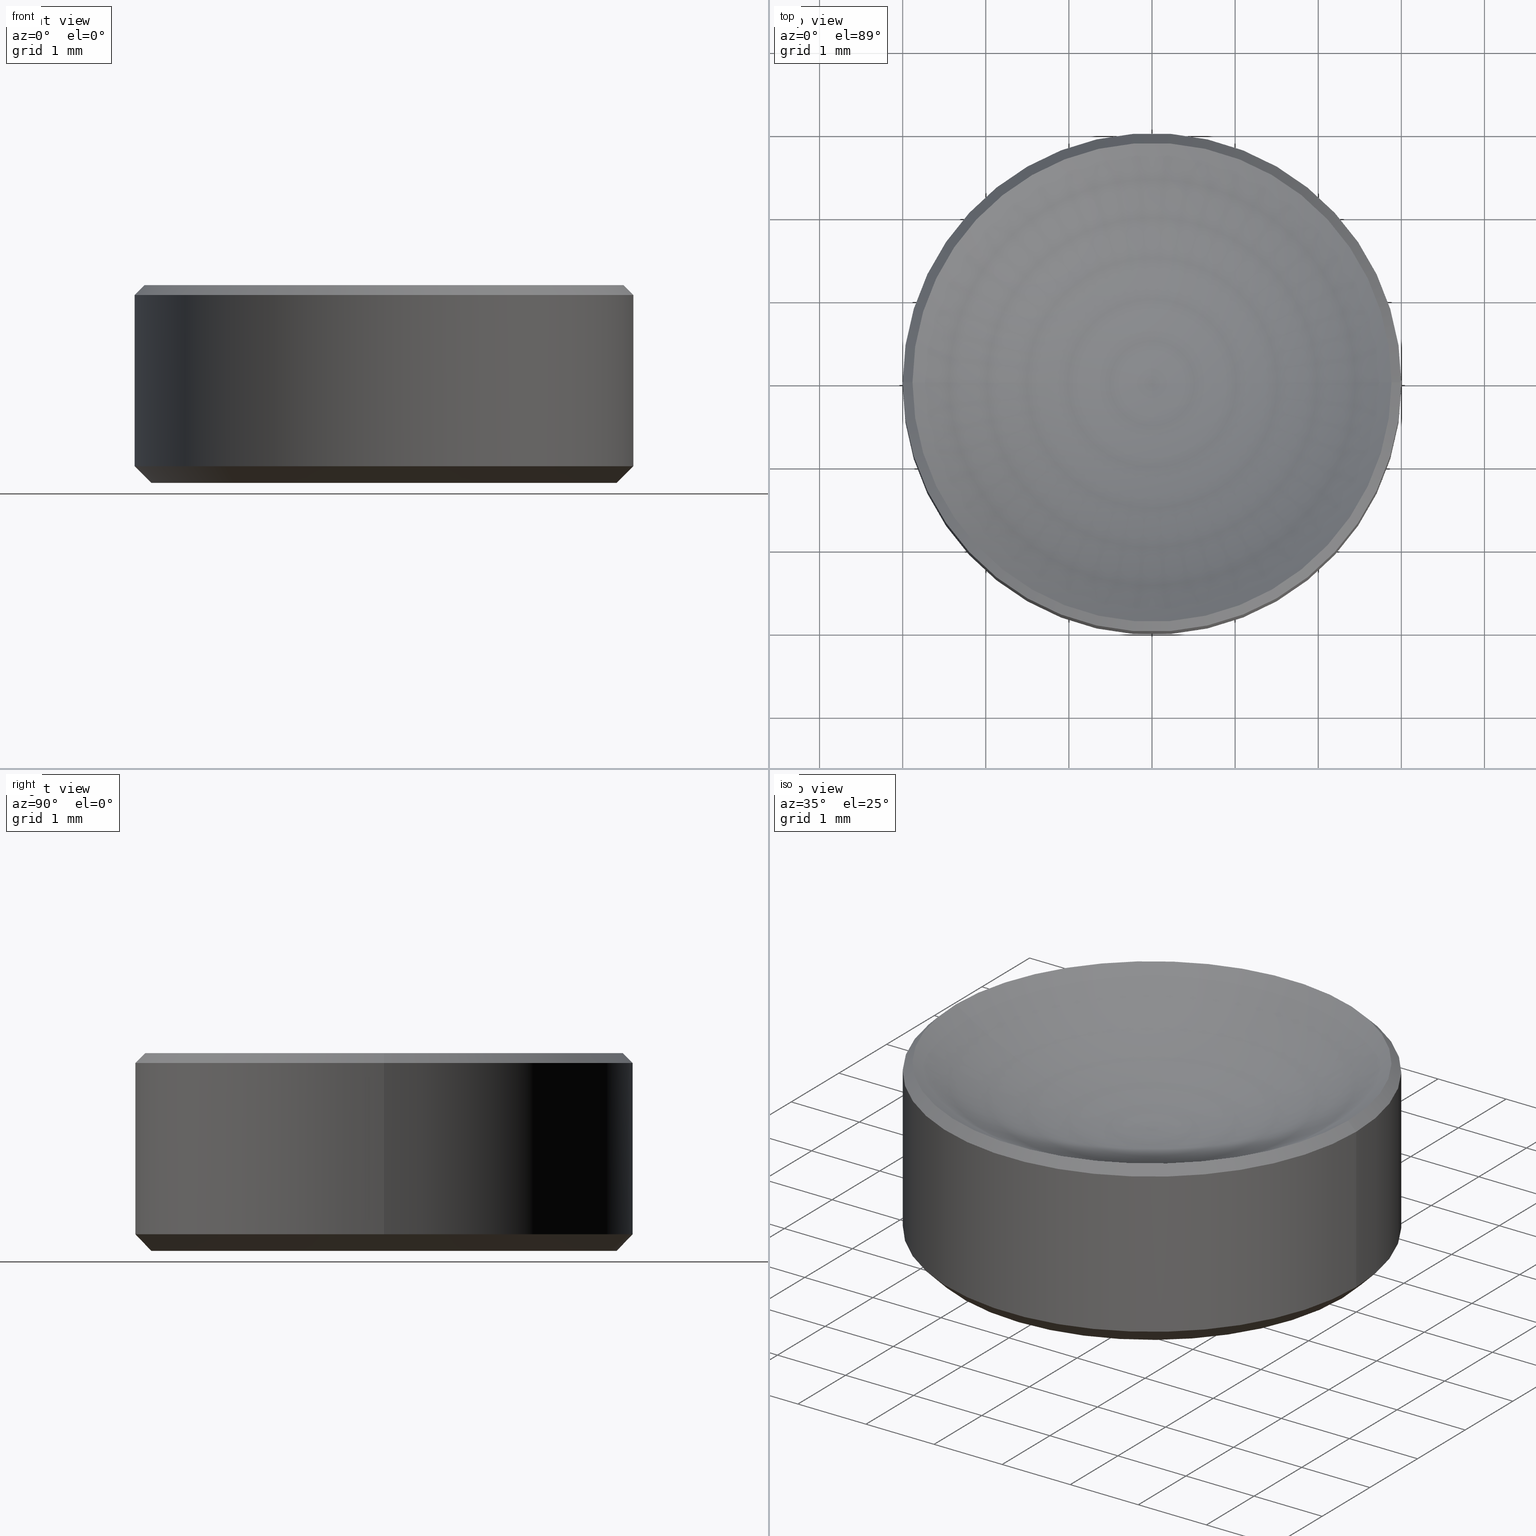
[diagram: canonical four-view strip — front | top / right | iso, engineering-drawing reading convention]
A machine part, canonical four-view strip (front | top / right | iso — engineering-drawing reading convention). The complete STEP part file that produces these views, byte-faithful:
ISO-10303-21;
HEADER;
FILE_DESCRIPTION (( 'STEP AP214' ),
    '1' );
FILE_NAME ('GL13-006A-010.STEP',
    '2022-10-25T12:36:45',
    ( '' ),
    ( '' ),
    'SwSTEP 2.0',
    'SolidWorks 2022',
    '' );
FILE_SCHEMA (( 'AUTOMOTIVE_DESIGN' ));
ENDSEC;

DATA;
#1 = CIRCLE ( 'NONE', #142, 3.000000000000000000 ) ;
#2 = ORIENTED_EDGE ( 'NONE', *, *, #121, .F. ) ;
#3 = EDGE_LOOP ( 'NONE', ( #32, #45, #189, #2 ) ) ;
#4 = AXIS2_PLACEMENT_3D ( 'NONE', #193, #9, #162 ) ;
#5 = DIRECTION ( 'NONE',  ( -1.000000000000000000, 1.224646799147353207E-16, 0.000000000000000000 ) ) ;
#6 = EDGE_LOOP ( 'NONE', ( #127, #15 ) ) ;
#7 = DIRECTION ( 'NONE',  ( 1.000000000000000000, 0.000000000000000000, 0.000000000000000000 ) ) ;
#8 = ORIENTED_EDGE ( 'NONE', *, *, #196, .T. ) ;
#9 = DIRECTION ( 'NONE',  ( -0.000000000000000000, -0.000000000000000000, 1.000000000000000000 ) ) ;
#10 = AXIS2_PLACEMENT_3D ( 'NONE', #213, #210, #72 ) ;
#11 = ORIENTED_EDGE ( 'NONE', *, *, #208, .F. ) ;
#12 = CARTESIAN_POINT ( 'NONE',  ( 0.000000000000000000, 0.000000000000000000, 2.378202045785372309 ) ) ;
#13 = FILL_AREA_STYLE ('',( #200 ) ) ;
#14 = DIRECTION ( 'NONE',  ( 1.000000000000000000, 0.000000000000000000, 0.000000000000000000 ) ) ;
#15 = ORIENTED_EDGE ( 'NONE', *, *, #247, .T. ) ;
#16 = ADVANCED_FACE ( 'NONE', ( #27 ), #179, .T. ) ;
#17 = ORIENTED_EDGE ( 'NONE', *, *, #52, .F. ) ;
#18 = CARTESIAN_POINT ( 'NONE',  ( 3.000000000000000000, 0.000000000000000000, 0.2000000000000016209 ) ) ;
#19 = CARTESIAN_POINT ( 'NONE',  ( 0.000000000000000000, 0.000000000000000000, 6.669999938107513238 ) ) ;
#20 = LINE ( 'NONE', #246, #216 ) ;
#21 = AXIS2_PLACEMENT_3D ( 'NONE', #107, #91, #14 ) ;
#22 =( GEOMETRIC_REPRESENTATION_CONTEXT ( 3 ) GLOBAL_UNCERTAINTY_ASSIGNED_CONTEXT ( ( #232 ) ) GLOBAL_UNIT_ASSIGNED_CONTEXT ( ( #249, #173, #170 ) ) REPRESENTATION_CONTEXT ( 'NONE', 'WORKASPACE' ) );
#23 = CIRCLE ( 'NONE', #160, 5.169999999999999929 ) ;
#24 = ORIENTED_EDGE ( 'NONE', *, *, #108, .T. ) ;
#25 = ADVANCED_FACE ( 'NONE', ( #212 ), #90, .F. ) ;
#26 = SURFACE_STYLE_FILL_AREA ( #235 ) ;
#27 = FACE_OUTER_BOUND ( 'NONE', #64, .T. ) ;
#28 = DIRECTION ( 'NONE',  ( -1.000000000000000000, 0.000000000000000000, 0.000000000000000000 ) ) ;
#29 = CARTESIAN_POINT ( 'NONE',  ( -3.000000000000000000, 3.673940397442059868E-16, 0.2000000000000016209 ) ) ;
#30 = CARTESIAN_POINT ( 'NONE',  ( -3.000000000000000000, 3.673940397442059868E-16, 2.260000000000000675 ) ) ;
#31 = SHAPE_DEFINITION_REPRESENTATION ( #242, #123 ) ;
#32 = ORIENTED_EDGE ( 'NONE', *, *, #108, .F. ) ;
#33 = VERTEX_POINT ( 'NONE', #30 ) ;
#34 = AXIS2_PLACEMENT_3D ( 'NONE', #190, #41, #57 ) ;
#35 = CARTESIAN_POINT ( 'NONE',  ( -2.799999999999997158, 3.551475717527322846E-16, 1.836970198721029934E-16 ) ) ;
#36 = CARTESIAN_POINT ( 'NONE',  ( 3.000000000000000000, 0.000000000000000000, 0.2000000000000016209 ) ) ;
#37 = ORIENTED_EDGE ( 'NONE', *, *, #121, .T. ) ;
#38 = APPLICATION_CONTEXT ( 'automotive_design' ) ;
#39 = DIRECTION ( 'NONE',  ( -0.000000000000000000, -0.000000000000000000, 1.000000000000000000 ) ) ;
#40 = AXIS2_PLACEMENT_3D ( 'NONE', #12, #134, #165 ) ;
#41 = DIRECTION ( 'NONE',  ( 0.000000000000000000, 0.000000000000000000, -1.000000000000000000 ) ) ;
#42 = AXIS2_PLACEMENT_3D ( 'NONE', #188, #133, #28 ) ;
#43 = ADVANCED_FACE ( 'NONE', ( #62 ), #199, .F. ) ;
#44 = EDGE_CURVE ( 'NONE', #185, #105, #176, .T. ) ;
#45 = ORIENTED_EDGE ( 'NONE', *, *, #59, .T. ) ;
#46 = DIRECTION ( 'NONE',  ( 1.000000000000000000, 0.000000000000000000, 0.000000000000000000 ) ) ;
#47 = CARTESIAN_POINT ( 'NONE',  ( 0.000000000000000000, 0.000000000000000000, 0.2000000000000016209 ) ) ;
#48 = CIRCLE ( 'NONE', #104, 2.799999999999997158 ) ;
#49 = EDGE_LOOP ( 'NONE', ( #112, #223, #206, #184 ) ) ;
#50 = DIRECTION ( 'NONE',  ( 0.000000000000000000, 0.000000000000000000, -1.000000000000000000 ) ) ;
#51 = DIRECTION ( 'NONE',  ( 0.000000000000000000, 0.000000000000000000, -1.000000000000000000 ) ) ;
#52 = EDGE_CURVE ( 'NONE', #105, #227, #56, .T. ) ;
#53 = AXIS2_PLACEMENT_3D ( 'NONE', #82, #167, #66 ) ;
#54 = ORIENTED_EDGE ( 'NONE', *, *, #144, .T. ) ;
#55 = CARTESIAN_POINT ( 'NONE',  ( 0.000000000000000000, 0.000000000000000000, 2.378202045785374974 ) ) ;
#56 = CIRCLE ( 'NONE', #248, 3.000000000000000000 ) ;
#57 = DIRECTION ( 'NONE',  ( -1.000000000000000000, 0.000000000000000000, 0.000000000000000000 ) ) ;
#58 = DIRECTION ( 'NONE',  ( -0.000000000000000000, -0.000000000000000000, 1.000000000000000000 ) ) ;
#59 = EDGE_CURVE ( 'NONE', #124, #61, #243, .T. ) ;
#60 = PRODUCT_RELATED_PRODUCT_CATEGORY ( 'part', '', ( #73 ) ) ;
#61 = VERTEX_POINT ( 'NONE', #172 ) ;
#62 = FACE_OUTER_BOUND ( 'NONE', #166, .T. ) ;
#63 = STYLED_ITEM ( 'NONE', ( #259 ), #211 ) ;
#64 = EDGE_LOOP ( 'NONE', ( #222, #209, #37, #85 ) ) ;
#65 = DIRECTION ( 'NONE',  ( -0.000000000000000000, -0.000000000000000000, 1.000000000000000000 ) ) ;
#66 = DIRECTION ( 'NONE',  ( 1.000000000000000000, 0.000000000000000000, 0.000000000000000000 ) ) ;
#67 = PRODUCT_DEFINITION ( 'δ֪', '', #70, #147 ) ;
#68 = SURFACE_STYLE_USAGE ( .BOTH. , #174 ) ;
#69 = AXIS2_PLACEMENT_3D ( 'NONE', #47, #65, #46 ) ;
#70 = PRODUCT_DEFINITION_FORMATION_WITH_SPECIFIED_SOURCE ( '�κ�', '', #73, .NOT_KNOWN. ) ;
#71 = CYLINDRICAL_SURFACE ( 'NONE', #21, 3.000000000000000000 ) ;
#72 = DIRECTION ( 'NONE',  ( 1.000000000000000000, 0.000000000000000000, 0.000000000000000000 ) ) ;
#73 = PRODUCT ( 'GL13-006A-010', 'GL13-006A-010', '', ( #215 ) ) ;
#74 = CARTESIAN_POINT ( 'NONE',  ( 2.881797954214630142, 0.000000000000000000, 2.378202045785374974 ) ) ;
#75 = DIRECTION ( 'NONE',  ( 1.000000000000000000, 0.000000000000000000, 0.000000000000000000 ) ) ;
#76 = CIRCLE ( 'NONE', #245, 2.881797954214628810 ) ;
#77 = PRESENTATION_LAYER_ASSIGNMENT (  '', '', ( #97 ) ) ;
#78 = EDGE_CURVE ( 'NONE', #98, #124, #151, .T. ) ;
#79 = AXIS2_PLACEMENT_3D ( 'NONE', #19, #96, #101 ) ;
#80 = AXIS2_PLACEMENT_3D ( 'NONE', #55, #241, #258 ) ;
#81 = FACE_OUTER_BOUND ( 'NONE', #3, .T. ) ;
#82 = CARTESIAN_POINT ( 'NONE',  ( 0.000000000000000000, 0.000000000000000000, 1.500000000000000000 ) ) ;
#83 = EDGE_CURVE ( 'NONE', #33, #61, #106, .T. ) ;
#84 = CARTESIAN_POINT ( 'NONE',  ( 0.000000000000000000, 0.000000000000000000, 0.000000000000000000 ) ) ;
#85 = ORIENTED_EDGE ( 'NONE', *, *, #252, .F. ) ;
#86 = VERTEX_POINT ( 'NONE', #229 ) ;
#87 = CARTESIAN_POINT ( 'NONE',  ( 0.000000000000000000, 0.000000000000000000, 0.2000000000000016209 ) ) ;
#88 = FACE_OUTER_BOUND ( 'NONE', #250, .T. ) ;
#89 = FACE_OUTER_BOUND ( 'NONE', #49, .T. ) ;
#90 = TOROIDAL_SURFACE ( 'NONE', #4, -0.0007999801944051383035, 5.169999999999999929 ) ;
#91 = DIRECTION ( 'NONE',  ( -0.000000000000000000, -0.000000000000000000, 1.000000000000000000 ) ) ;
#92 = ADVANCED_FACE ( 'NONE', ( #88 ), #71, .T. ) ;
#93 = FILL_AREA_STYLE_COLOUR ( '', #194 ) ;
#94 = SURFACE_STYLE_FILL_AREA ( #13 ) ;
#95 = DIRECTION ( 'NONE',  ( 0.7071067811865450192, 8.659560562354900811E-17, -0.7071067811865500152 ) ) ;
#96 = DIRECTION ( 'NONE',  ( -0.000000000000000000, -0.000000000000000000, 1.000000000000000000 ) ) ;
#97 = STYLED_ITEM ( 'NONE', ( #264 ), #123 ) ;
#98 = VERTEX_POINT ( 'NONE', #219 ) ;
#99 = LINE ( 'NONE', #178, #143 ) ;
#100 = CARTESIAN_POINT ( 'NONE',  ( 0.000000000000000000, 0.000000000000000000, 2.378202045785374974 ) ) ;
#101 = DIRECTION ( 'NONE',  ( 1.000000000000000000, 0.000000000000000000, 0.000000000000000000 ) ) ;
#102 =( LENGTH_UNIT ( ) NAMED_UNIT ( * ) SI_UNIT ( .MILLI., .METRE. ) );
#103 = VECTOR ( 'NONE', #260, 1000.000000000000000 ) ;
#104 = AXIS2_PLACEMENT_3D ( 'NONE', #154, #50, #136 ) ;
#105 = VERTEX_POINT ( 'NONE', #18 ) ;
#106 = CIRCLE ( 'NONE', #217, 3.000000000000000000 ) ;
#107 = CARTESIAN_POINT ( 'NONE',  ( 0.000000000000000000, 0.000000000000000000, 1.500000000000000000 ) ) ;
#108 = EDGE_CURVE ( 'NONE', #124, #98, #76, .T. ) ;
#109 =( GEOMETRIC_REPRESENTATION_CONTEXT ( 3 ) GLOBAL_UNCERTAINTY_ASSIGNED_CONTEXT ( ( #122 ) ) GLOBAL_UNIT_ASSIGNED_CONTEXT ( ( #197, #255, #140 ) ) REPRESENTATION_CONTEXT ( 'NONE', 'WORKASPACE' ) );
#110 = FACE_OUTER_BOUND ( 'NONE', #191, .T. ) ;
#111 = VERTEX_POINT ( 'NONE', #35 ) ;
#112 = ORIENTED_EDGE ( 'NONE', *, *, #145, .F. ) ;
#113 = DIRECTION ( 'NONE',  ( 1.000000000000000000, 0.000000000000000000, 0.000000000000000000 ) ) ;
#114 = PLANE ( 'NONE',  #10 ) ;
#115 = CARTESIAN_POINT ( 'NONE',  ( 0.0007999801944051383035, -9.796931844595300665E-20, 6.669999938107513238 ) ) ;
#116 = AXIS2_PLACEMENT_3D ( 'NONE', #150, #132, #113 ) ;
#117 = AXIS2_PLACEMENT_3D ( 'NONE', #84, #138, #75 ) ;
#118 = DIRECTION ( 'NONE',  ( 0.000000000000000000, 0.000000000000000000, -1.000000000000000000 ) ) ;
#119 = LINE ( 'NONE', #175, #103 ) ;
#120 = CARTESIAN_POINT ( 'NONE',  ( 2.881797954214629254, 3.529184640418335740E-16, 2.378202045785372309 ) ) ;
#121 = EDGE_CURVE ( 'NONE', #98, #33, #119, .T. ) ;
#122 = UNCERTAINTY_MEASURE_WITH_UNIT (LENGTH_MEASURE( 1.000000000000000082E-05 ), #197, 'distance_accuracy_value', 'NONE');
#123 = ADVANCED_BREP_SHAPE_REPRESENTATION ( 'GL13-006A-010', ( #211, #117 ), #183 ) ;
#124 = VERTEX_POINT ( 'NONE', #74 ) ;
#125 = ADVANCED_FACE ( 'NONE', ( #89 ), #239, .T. ) ;
#126 = APPLICATION_PROTOCOL_DEFINITION ( 'draft international standard', 'automotive_design', 1998, #38 ) ;
#127 = ORIENTED_EDGE ( 'NONE', *, *, #181, .T. ) ;
#128 = PRESENTATION_LAYER_ASSIGNMENT (  '', '', ( #63 ) ) ;
#129 = VECTOR ( 'NONE', #130, 1000.000000000000000 ) ;
#130 = DIRECTION ( 'NONE',  ( -0.7071067811865497932, 8.659560562354961208E-17, 0.7071067811865452413 ) ) ;
#131 = CLOSED_SHELL ( 'NONE', ( #214, #224, #92, #43, #25, #230, #163, #125, #16 ) ) ;
#132 = DIRECTION ( 'NONE',  ( 0.000000000000000000, 0.000000000000000000, -1.000000000000000000 ) ) ;
#133 = DIRECTION ( 'NONE',  ( 0.000000000000000000, 0.000000000000000000, -1.000000000000000000 ) ) ;
#134 = DIRECTION ( 'NONE',  ( 0.000000000000000000, 0.000000000000000000, -1.000000000000000000 ) ) ;
#135 = ORIENTED_EDGE ( 'NONE', *, *, #254, .T. ) ;
#136 = DIRECTION ( 'NONE',  ( 1.000000000000000000, 0.000000000000000000, 0.000000000000000000 ) ) ;
#137 = DIRECTION ( 'NONE',  ( -1.000000000000000000, 0.000000000000000000, 0.000000000000000000 ) ) ;
#138 = DIRECTION ( 'NONE',  ( 0.000000000000000000, 0.000000000000000000, 1.000000000000000000 ) ) ;
#139 = VECTOR ( 'NONE', #263, 1000.000000000000000 ) ;
#140 =( NAMED_UNIT ( * ) SI_UNIT ( $, .STERADIAN. ) SOLID_ANGLE_UNIT ( ) );
#141 = ORIENTED_EDGE ( 'NONE', *, *, #83, .T. ) ;
#142 = AXIS2_PLACEMENT_3D ( 'NONE', #87, #192, #231 ) ;
#143 = VECTOR ( 'NONE', #58, 1000.000000000000000 ) ;
#144 = EDGE_CURVE ( 'NONE', #227, #105, #1, .T. ) ;
#145 = EDGE_CURVE ( 'NONE', #111, #227, #257, .T. ) ;
#146 = CARTESIAN_POINT ( 'NONE',  ( 2.799999999999997158, 0.000000000000000000, 1.836970198721029934E-16 ) ) ;
#147 = PRODUCT_DEFINITION_CONTEXT ( 'detailed design', #182, 'design' ) ;
#148 = ORIENTED_EDGE ( 'NONE', *, *, #252, .T. ) ;
#149 = ORIENTED_EDGE ( 'NONE', *, *, #145, .T. ) ;
#150 = CARTESIAN_POINT ( 'NONE',  ( 0.000000000000000000, 0.000000000000000000, 1.836970198721029934E-16 ) ) ;
#151 = CIRCLE ( 'NONE', #80, 2.881797954214628810 ) ;
#152 = DIRECTION ( 'NONE',  ( 1.224646799147353207E-16, 1.000000000000000000, 0.000000000000000000 ) ) ;
#153 = ORIENTED_EDGE ( 'NONE', *, *, #247, .F. ) ;
#154 = CARTESIAN_POINT ( 'NONE',  ( 0.000000000000000000, 0.000000000000000000, 1.836970198721029934E-16 ) ) ;
#155 = CARTESIAN_POINT ( 'NONE',  ( 0.000000000000000000, 0.000000000000000000, 2.260000000000000675 ) ) ;
#156 = DIRECTION ( 'NONE',  ( 1.000000000000000000, 0.000000000000000000, 0.000000000000000000 ) ) ;
#157 = SURFACE_SIDE_STYLE ('',( #94 ) ) ;
#158 = DIRECTION ( 'NONE',  ( -0.000000000000000000, -0.000000000000000000, 1.000000000000000000 ) ) ;
#159 = CARTESIAN_POINT ( 'NONE',  ( 0.000000000000000000, 0.000000000000000000, 0.2000000000000016209 ) ) ;
#160 = AXIS2_PLACEMENT_3D ( 'NONE', #115, #152, #5 ) ;
#161 = AXIS2_PLACEMENT_3D ( 'NONE', #256, #195, #118 ) ;
#162 = DIRECTION ( 'NONE',  ( 1.000000000000000000, 0.000000000000000000, 0.000000000000000000 ) ) ;
#163 = ADVANCED_FACE ( 'NONE', ( #169 ), #114, .F. ) ;
#164 = CONICAL_SURFACE ( 'NONE', #69, 3.000000000000000000, 0.7853981633974514986 ) ;
#165 = DIRECTION ( 'NONE',  ( -1.000000000000000000, 0.000000000000000000, 0.000000000000000000 ) ) ;
#166 = EDGE_LOOP ( 'NONE', ( #11, #8, #251 ) ) ;
#167 = DIRECTION ( 'NONE',  ( -0.000000000000000000, -0.000000000000000000, 1.000000000000000000 ) ) ;
#168 = UNCERTAINTY_MEASURE_WITH_UNIT (LENGTH_MEASURE( 1.000000000000000082E-05 ), #102, 'distance_accuracy_value', 'NONE');
#169 = FACE_OUTER_BOUND ( 'NONE', #6, .T. ) ;
#170 =( NAMED_UNIT ( * ) SI_UNIT ( $, .STERADIAN. ) SOLID_ANGLE_UNIT ( ) );
#171 = CARTESIAN_POINT ( 'NONE',  ( 0.000000000000000000, 0.000000000000000000, 0.2000000000000016209 ) ) ;
#172 = CARTESIAN_POINT ( 'NONE',  ( 3.000000000000000000, 0.000000000000000000, 2.260000000000000675 ) ) ;
#173 =( NAMED_UNIT ( * ) PLANE_ANGLE_UNIT ( ) SI_UNIT ( $, .RADIAN. ) );
#174 = SURFACE_SIDE_STYLE ('',( #26 ) ) ;
#175 = CARTESIAN_POINT ( 'NONE',  ( -2.881797954214629254, 0.000000000000000000, 2.378202045785372309 ) ) ;
#176 = LINE ( 'NONE', #36, #139 ) ;
#177 = EDGE_LOOP ( 'NONE', ( #153, #149, #17, #202 ) ) ;
#178 = CARTESIAN_POINT ( 'NONE',  ( -3.000000000000000000, 3.673940397442059868E-16, 1.500000000000000000 ) ) ;
#179 = CONICAL_SURFACE ( 'NONE', #42, 2.881797954214629254, 0.7853981633974447263 ) ;
#180 = MECHANICAL_DESIGN_GEOMETRIC_PRESENTATION_REPRESENTATION (  '', ( #97 ), #22 ) ;
#181 = EDGE_CURVE ( 'NONE', #185, #111, #48, .T. ) ;
#182 = APPLICATION_CONTEXT ( 'automotive_design' ) ;
#183 =( GEOMETRIC_REPRESENTATION_CONTEXT ( 3 ) GLOBAL_UNCERTAINTY_ASSIGNED_CONTEXT ( ( #168 ) ) GLOBAL_UNIT_ASSIGNED_CONTEXT ( ( #102, #198, #262 ) ) REPRESENTATION_CONTEXT ( 'NONE', 'WORKASPACE' ) );
#184 = ORIENTED_EDGE ( 'NONE', *, *, #144, .F. ) ;
#185 = VERTEX_POINT ( 'NONE', #146 ) ;
#186 = MECHANICAL_DESIGN_GEOMETRIC_PRESENTATION_REPRESENTATION (  '', ( #63 ), #109 ) ;
#187 = CYLINDRICAL_SURFACE ( 'NONE', #53, 3.000000000000000000 ) ;
#188 = CARTESIAN_POINT ( 'NONE',  ( 0.000000000000000000, 0.000000000000000000, 2.378202045785372309 ) ) ;
#189 = ORIENTED_EDGE ( 'NONE', *, *, #83, .F. ) ;
#190 = CARTESIAN_POINT ( 'NONE',  ( 0.000000000000000000, 0.000000000000000000, 2.260000000000000675 ) ) ;
#191 = EDGE_LOOP ( 'NONE', ( #204, #54, #218, #148 ) ) ;
#192 = DIRECTION ( 'NONE',  ( -0.000000000000000000, -0.000000000000000000, 1.000000000000000000 ) ) ;
#193 = CARTESIAN_POINT ( 'NONE',  ( 0.000000000000000000, 0.000000000000000000, 6.669999938107513238 ) ) ;
#194 = COLOUR_RGB ( '',1.000000000000000000, 1.000000000000000000, 1.000000000000000000 ) ;
#195 = DIRECTION ( 'NONE',  ( 0.000000000000000000, -1.000000000000000000, 0.000000000000000000 ) ) ;
#196 = EDGE_CURVE ( 'NONE', #86, #98, #23, .T. ) ;
#197 =( LENGTH_UNIT ( ) NAMED_UNIT ( * ) SI_UNIT ( .MILLI., .METRE. ) );
#198 =( NAMED_UNIT ( * ) PLANE_ANGLE_UNIT ( ) SI_UNIT ( $, .RADIAN. ) );
#199 = TOROIDAL_SURFACE ( 'NONE', #79, -0.0007999801944051383035, 5.169999999999999929 ) ;
#200 = FILL_AREA_STYLE_COLOUR ( '', #207 ) ;
#201 = ORIENTED_EDGE ( 'NONE', *, *, #52, .T. ) ;
#202 = ORIENTED_EDGE ( 'NONE', *, *, #44, .F. ) ;
#203 = CIRCLE ( 'NONE', #161, 5.169999999999999929 ) ;
#204 = ORIENTED_EDGE ( 'NONE', *, *, #254, .F. ) ;
#205 = CARTESIAN_POINT ( 'NONE',  ( -3.000000000000000000, 3.673940397442059868E-16, 0.2000000000000016209 ) ) ;
#206 = ORIENTED_EDGE ( 'NONE', *, *, #44, .T. ) ;
#207 = COLOUR_RGB ( '',1.000000000000000000, 1.000000000000000000, 1.000000000000000000 ) ;
#208 = EDGE_CURVE ( 'NONE', #86, #124, #203, .T. ) ;
#209 = ORIENTED_EDGE ( 'NONE', *, *, #78, .F. ) ;
#210 = DIRECTION ( 'NONE',  ( 0.000000000000000000, -0.000000000000000000, 1.000000000000000000 ) ) ;
#211 = MANIFOLD_SOLID_BREP ( '����2', #131 ) ;
#212 = FACE_OUTER_BOUND ( 'NONE', #233, .T. ) ;
#213 = CARTESIAN_POINT ( 'NONE',  ( 0.000000000000000000, 0.000000000000000000, 1.836970198721029934E-16 ) ) ;
#214 = ADVANCED_FACE ( 'NONE', ( #81 ), #261, .T. ) ;
#215 = PRODUCT_CONTEXT ( 'NONE', #38, 'mechanical' ) ;
#216 = VECTOR ( 'NONE', #221, 1000.000000000000000 ) ;
#217 = AXIS2_PLACEMENT_3D ( 'NONE', #155, #51, #137 ) ;
#218 = ORIENTED_EDGE ( 'NONE', *, *, #265, .T. ) ;
#219 = CARTESIAN_POINT ( 'NONE',  ( -2.881797954214630142, 3.529184640418337712E-16, 2.378202045785374974 ) ) ;
#220 = VECTOR ( 'NONE', #95, 1000.000000000000000 ) ;
#221 = DIRECTION ( 'NONE',  ( -0.000000000000000000, -0.000000000000000000, 1.000000000000000000 ) ) ;
#222 = ORIENTED_EDGE ( 'NONE', *, *, #59, .F. ) ;
#223 = ORIENTED_EDGE ( 'NONE', *, *, #181, .F. ) ;
#224 = ADVANCED_FACE ( 'NONE', ( #253 ), #164, .T. ) ;
#225 = CIRCLE ( 'NONE', #116, 2.799999999999997158 ) ;
#226 = ORIENTED_EDGE ( 'NONE', *, *, #196, .F. ) ;
#227 = VERTEX_POINT ( 'NONE', #205 ) ;
#228 = ORIENTED_EDGE ( 'NONE', *, *, #208, .T. ) ;
#229 = CARTESIAN_POINT ( 'NONE',  ( 0.000000000000000000, 0.000000000000000000, 1.500000000000000000 ) ) ;
#230 = ADVANCED_FACE ( 'NONE', ( #110 ), #187, .T. ) ;
#231 = DIRECTION ( 'NONE',  ( 1.000000000000000000, 0.000000000000000000, 0.000000000000000000 ) ) ;
#232 = UNCERTAINTY_MEASURE_WITH_UNIT (LENGTH_MEASURE( 1.000000000000000082E-05 ), #249, 'distance_accuracy_value', 'NONE');
#233 = EDGE_LOOP ( 'NONE', ( #226, #228, #24 ) ) ;
#234 = AXIS2_PLACEMENT_3D ( 'NONE', #171, #237, #7 ) ;
#235 = FILL_AREA_STYLE ('',( #93 ) ) ;
#236 = ORIENTED_EDGE ( 'NONE', *, *, #265, .F. ) ;
#237 = DIRECTION ( 'NONE',  ( -0.000000000000000000, -0.000000000000000000, 1.000000000000000000 ) ) ;
#238 = APPLICATION_PROTOCOL_DEFINITION ( 'draft international standard', 'automotive_design', 1998, #182 ) ;
#239 = CONICAL_SURFACE ( 'NONE', #234, 3.000000000000000000, 0.7853981633974514986 ) ;
#240 = SURFACE_STYLE_USAGE ( .BOTH. , #157 ) ;
#241 = DIRECTION ( 'NONE',  ( -0.000000000000000000, -0.000000000000000000, 1.000000000000000000 ) ) ;
#242 = PRODUCT_DEFINITION_SHAPE ( 'NONE', 'NONE',  #67 ) ;
#243 = LINE ( 'NONE', #120, #220 ) ;
#244 = DIRECTION ( 'NONE',  ( 1.000000000000000000, 0.000000000000000000, 0.000000000000000000 ) ) ;
#245 = AXIS2_PLACEMENT_3D ( 'NONE', #100, #39, #156 ) ;
#246 = CARTESIAN_POINT ( 'NONE',  ( 3.000000000000000000, 0.000000000000000000, 1.500000000000000000 ) ) ;
#247 = EDGE_CURVE ( 'NONE', #111, #185, #225, .T. ) ;
#248 = AXIS2_PLACEMENT_3D ( 'NONE', #159, #158, #244 ) ;
#249 =( LENGTH_UNIT ( ) NAMED_UNIT ( * ) SI_UNIT ( .MILLI., .METRE. ) );
#250 = EDGE_LOOP ( 'NONE', ( #201, #135, #141, #236 ) ) ;
#251 = ORIENTED_EDGE ( 'NONE', *, *, #78, .T. ) ;
#252 = EDGE_CURVE ( 'NONE', #61, #33, #266, .T. ) ;
#253 = FACE_OUTER_BOUND ( 'NONE', #177, .T. ) ;
#254 = EDGE_CURVE ( 'NONE', #227, #33, #99, .T. ) ;
#255 =( NAMED_UNIT ( * ) PLANE_ANGLE_UNIT ( ) SI_UNIT ( $, .RADIAN. ) );
#256 = CARTESIAN_POINT ( 'NONE',  ( -0.0007999801944051383035, 0.000000000000000000, 6.669999938107513238 ) ) ;
#257 = LINE ( 'NONE', #29, #129 ) ;
#258 = DIRECTION ( 'NONE',  ( 1.000000000000000000, 0.000000000000000000, 0.000000000000000000 ) ) ;
#259 = PRESENTATION_STYLE_ASSIGNMENT (( #68 ) ) ;
#260 = DIRECTION ( 'NONE',  ( -0.7071067811865450192, 0.000000000000000000, -0.7071067811865500152 ) ) ;
#261 = CONICAL_SURFACE ( 'NONE', #40, 2.881797954214629254, 0.7853981633974447263 ) ;
#262 =( NAMED_UNIT ( * ) SI_UNIT ( $, .STERADIAN. ) SOLID_ANGLE_UNIT ( ) );
#263 = DIRECTION ( 'NONE',  ( 0.7071067811865497932, 0.000000000000000000, 0.7071067811865452413 ) ) ;
#264 = PRESENTATION_STYLE_ASSIGNMENT (( #240 ) ) ;
#265 = EDGE_CURVE ( 'NONE', #105, #61, #20, .T. ) ;
#266 = CIRCLE ( 'NONE', #34, 3.000000000000000000 ) ;
ENDSEC;
END-ISO-10303-21;
